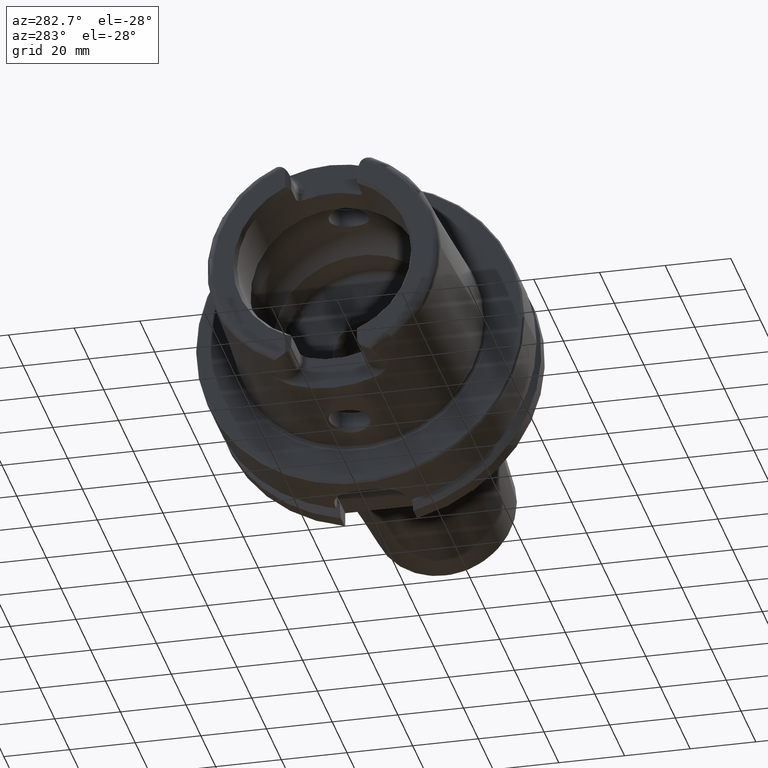
[diagram: clean part render]
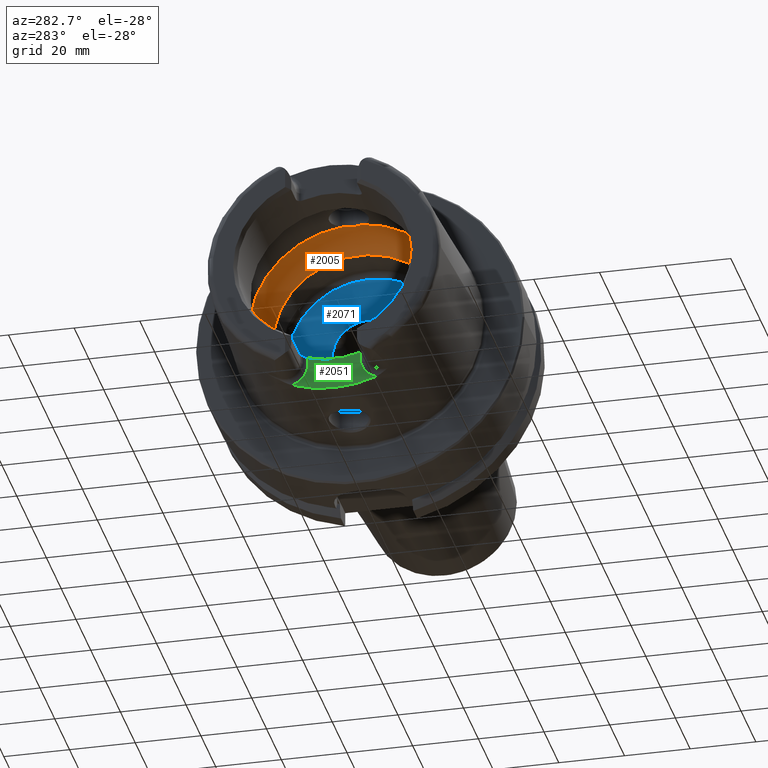
[diagram: same view with three faces highlighted in distinct colors, each labeled with its STEP entity id]
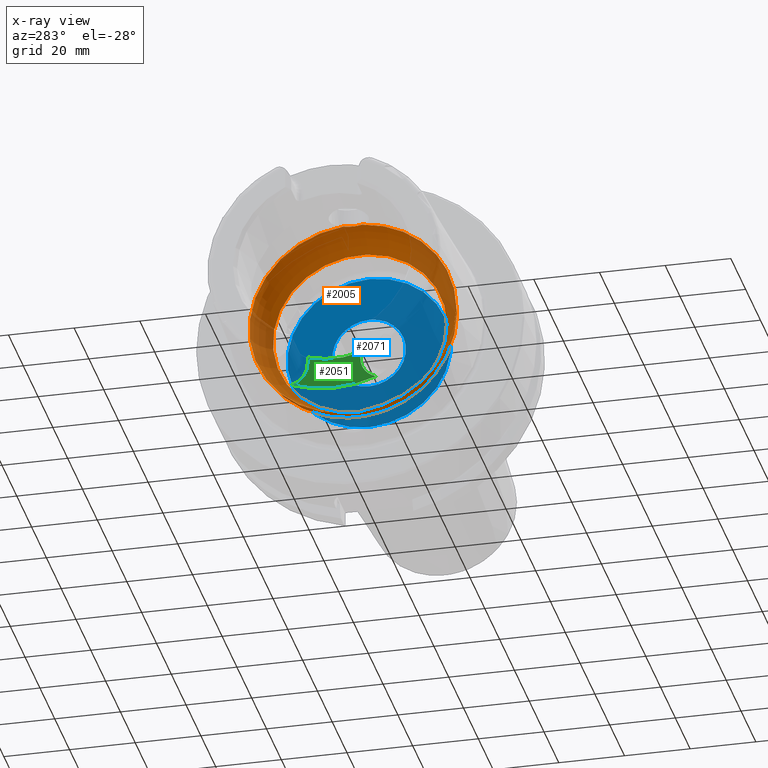
[diagram: x-ray of the same camera — body ghosted, the three highlighted faces saturated]
A machine part, auxiliary view with three faces highlighted in distinct colors.
The next image is the same camera in x-ray (body ghosted, the three faces saturated) — at least one of them is partly hidden behind the body in this view.
Their STEP definitions:

[orange] entity #2005 — the highlighted toroidal blend (fillet) surface has major radius 19.5 mm and minor (blend) radius 12 mm.
#48=B_SPLINE_CURVE_WITH_KNOTS('',3,(#3559,#3560,#3561,#3562,#3563,#3564,
#3565,#3566,#3567,#3568),.UNSPECIFIED.,.F.,.F.,(4,2,2,2,4),(-0.606113644645353,
-0.532141714710631,-0.407956541554012,-0.344441109025195,-0.303157612487306),
 .UNSPECIFIED.);
#50=B_SPLINE_CURVE_WITH_KNOTS('',3,(#3601,#3602,#3603,#3604,#3605,#3606,
#3607,#3608,#3609,#3610),.UNSPECIFIED.,.F.,.F.,(4,2,2,2,4),(-0.303157612487306,
-0.297161587155601,-0.247817233363509,-0.174446982686599,0.),
 .UNSPECIFIED.);
#53=B_SPLINE_CURVE_WITH_KNOTS('',3,(#3751,#3752,#3753,#3754,#3755,#3756,
#3757,#3758,#3759,#3760),.UNSPECIFIED.,.F.,.F.,(4,2,2,2,4),(-0.606113644645388,
-0.532141714710621,-0.407956541553997,-0.344441109025146,-0.303157612487227),
 .UNSPECIFIED.);
#55=B_SPLINE_CURVE_WITH_KNOTS('',3,(#3793,#3794,#3795,#3796,#3797,#3798,
#3799,#3800,#3801,#3802),.UNSPECIFIED.,.F.,.F.,(4,2,2,2,4),(-0.303157612487227,
-0.297161587155532,-0.247817233363497,-0.174446982686607,0.),
 .UNSPECIFIED.);
#138=TOROIDAL_SURFACE('',#2201,19.5,12.);
#243=FACE_OUTER_BOUND('',#370,.T.);
#370=EDGE_LOOP('',(#1513,#1514,#1515,#1516,#1517,#1518,#1519,#1520,#1521,
#1522,#1523));
#714=CIRCLE('',#2196,31.5);
#717=CIRCLE('',#2199,31.5);
#718=CIRCLE('',#2200,31.5);
#719=CIRCLE('',#2202,26.5);
#720=CIRCLE('',#2203,26.5);
#721=CIRCLE('',#2204,12.);
#887=VERTEX_POINT('',#3556);
#888=VERTEX_POINT('',#3558);
#889=VERTEX_POINT('',#3569);
#892=VERTEX_POINT('',#3749);
#893=VERTEX_POINT('',#3750);
#894=VERTEX_POINT('',#3761);
#895=VERTEX_POINT('',#3805);
#898=VERTEX_POINT('',#3815);
#899=VERTEX_POINT('',#3816);
#1118=EDGE_CURVE('',#888,#887,#48,.T.);
#1120=EDGE_CURVE('',#887,#889,#50,.T.);
#1124=EDGE_CURVE('',#892,#893,#53,.T.);
#1126=EDGE_CURVE('',#893,#894,#55,.T.);
#1128=EDGE_CURVE('',#895,#892,#714,.T.);
#1132=EDGE_CURVE('',#889,#895,#717,.T.);
#1133=EDGE_CURVE('',#894,#888,#718,.T.);
#1134=EDGE_CURVE('',#898,#899,#719,.T.);
#1135=EDGE_CURVE('',#899,#898,#720,.T.);
#1136=EDGE_CURVE('',#899,#887,#721,.T.);
#1513=ORIENTED_EDGE('',*,*,#1134,.F.);
#1514=ORIENTED_EDGE('',*,*,#1135,.F.);
#1515=ORIENTED_EDGE('',*,*,#1136,.T.);
#1516=ORIENTED_EDGE('',*,*,#1120,.T.);
#1517=ORIENTED_EDGE('',*,*,#1132,.T.);
#1518=ORIENTED_EDGE('',*,*,#1128,.T.);
#1519=ORIENTED_EDGE('',*,*,#1124,.T.);
#1520=ORIENTED_EDGE('',*,*,#1126,.T.);
#1521=ORIENTED_EDGE('',*,*,#1133,.T.);
#1522=ORIENTED_EDGE('',*,*,#1118,.T.);
#1523=ORIENTED_EDGE('',*,*,#1136,.F.);
#2005=ADVANCED_FACE('',(#243),#138,.F.);
#2196=AXIS2_PLACEMENT_3D('',#3806,#2581,#2582);
#2199=AXIS2_PLACEMENT_3D('',#3812,#2588,#2589);
#2200=AXIS2_PLACEMENT_3D('',#3813,#2590,#2591);
#2201=AXIS2_PLACEMENT_3D('',#3814,#2592,#2593);
#2202=AXIS2_PLACEMENT_3D('',#3817,#2594,#2595);
#2203=AXIS2_PLACEMENT_3D('',#3818,#2596,#2597);
#2204=AXIS2_PLACEMENT_3D('',#3819,#2598,#2599);
#2581=DIRECTION('center_axis',(-1.,0.,0.));
#2582=DIRECTION('ref_axis',(0.,0.,1.));
#2588=DIRECTION('center_axis',(-1.,0.,0.));
#2589=DIRECTION('ref_axis',(0.,0.,1.));
#2590=DIRECTION('center_axis',(-1.,0.,0.));
#2591=DIRECTION('ref_axis',(0.,0.,1.));
#2592=DIRECTION('center_axis',(-1.,0.,0.));
#2593=DIRECTION('ref_axis',(0.,0.,1.));
#2594=DIRECTION('center_axis',(-1.,0.,0.));
#2595=DIRECTION('ref_axis',(0.,0.,1.));
#2596=DIRECTION('center_axis',(-1.,0.,0.));
#2597=DIRECTION('ref_axis',(0.,0.,1.));
#2598=DIRECTION('center_axis',(0.,1.,-1.22464679914735E-16));
#2599=DIRECTION('ref_axis',(0.,-1.22464679914735E-16,-1.));
#3556=CARTESIAN_POINT('',(-9.,8.53116613017712E-16,-31.4767398822284));
#3558=CARTESIAN_POINT('',(-9.74679434480896,2.89893607109041,-31.3663222207471));
#3559=CARTESIAN_POINT('Ctrl Pts',(-9.74679434480898,2.89893607109041,-31.3663222207471));
#3560=CARTESIAN_POINT('Ctrl Pts',(-9.62803941549252,2.68373847757038,-31.3862111979079));
#3561=CARTESIAN_POINT('Ctrl Pts',(-9.52250794022164,2.46123932380009,-31.4027818190648));
#3562=CARTESIAN_POINT('Ctrl Pts',(-9.27707880675082,1.84905941644996,-31.4398086116956));
#3563=CARTESIAN_POINT('Ctrl Pts',(-9.16318715371328,1.45014848778478,-31.4552463037839));
#3564=CARTESIAN_POINT('Ctrl Pts',(-9.05448554629564,0.83406948853474,-31.4697090180031));
#3565=CARTESIAN_POINT('Ctrl Pts',(-9.02875508102837,0.623753972628784,-31.4730355369691));
#3566=CARTESIAN_POINT('Ctrl Pts',(-9.00473516300901,0.275210595137741,-31.4761342948647));
#3567=CARTESIAN_POINT('Ctrl Pts',(-9.,0.13762179988616,-31.4767398822284));
#3568=CARTESIAN_POINT('Ctrl Pts',(-9.,9.71445146547012E-16,-31.4767398822284));
#3569=CARTESIAN_POINT('',(-9.74679434480896,-2.89893607109041,-31.3663222207471));
#3601=CARTESIAN_POINT('Ctrl Pts',(-9.,9.83483832277069E-16,-31.4767398822284));
#3602=CARTESIAN_POINT('Ctrl Pts',(-9.,-0.0199882245331354,-31.4767398822284));
#3603=CARTESIAN_POINT('Ctrl Pts',(-9.00009988237686,-0.0399771452902417,
-31.4767270717783));
#3604=CARTESIAN_POINT('Ctrl Pts',(-9.00194380057016,-0.224464346212316,
-31.4764905359115));
#3605=CARTESIAN_POINT('Ctrl Pts',(-9.01035297969853,-0.388827878343727,
-31.4754151841588));
#3606=CARTESIAN_POINT('Ctrl Pts',(-9.0480310904853,-0.796171644009328,-31.4705320701686));
#3607=CARTESIAN_POINT('Ctrl Pts',(-9.08543037238412,-1.03809779370842,-31.4656619259797));
#3608=CARTESIAN_POINT('Ctrl Pts',(-9.26119500081336,-1.84501079512327,-31.441850680052));
#3609=CARTESIAN_POINT('Ctrl Pts',(-9.4667592962906,-2.39148034786879,-31.4132222586341));
#3610=CARTESIAN_POINT('Ctrl Pts',(-9.74679434480898,-2.89893607109041,-31.3663222207471));
#3749=CARTESIAN_POINT('',(-9.74679434480896,-2.89893607109042,31.3663222207471));
#3750=CARTESIAN_POINT('',(-8.99999999999999,7.8372767397864E-16,31.4767398822284));
#3751=CARTESIAN_POINT('Ctrl Pts',(-9.74679434480898,-2.89893607109042,31.3663222207471));
#3752=CARTESIAN_POINT('Ctrl Pts',(-9.62803941549257,-2.6837384775705,31.3862111979079));
#3753=CARTESIAN_POINT('Ctrl Pts',(-9.52250794022172,-2.46123932380032,31.4027818190648));
#3754=CARTESIAN_POINT('Ctrl Pts',(-9.27707880675083,-1.84905941645004,31.4398086116956));
#3755=CARTESIAN_POINT('Ctrl Pts',(-9.16318715371328,-1.45014848778485,31.4552463037839));
#3756=CARTESIAN_POINT('Ctrl Pts',(-9.05448554629561,-0.834069488534672,
31.4697090180031));
#3757=CARTESIAN_POINT('Ctrl Pts',(-9.02875508102836,-0.623753972628598,
31.4730355369691));
#3758=CARTESIAN_POINT('Ctrl Pts',(-9.00473516300902,-0.275210595137865,
31.4761342948647));
#3759=CARTESIAN_POINT('Ctrl Pts',(-8.99999999999999,-0.137621799886392,
31.4767398822284));
#3760=CARTESIAN_POINT('Ctrl Pts',(-8.99999999999999,9.0205620750794E-16,
31.4767398822284));
#3761=CARTESIAN_POINT('',(-9.74679434480896,2.89893607109042,31.3663222207471));
#3793=CARTESIAN_POINT('Ctrl Pts',(-8.99999999999999,8.7920239009422E-16,
31.4767398822284));
#3794=CARTESIAN_POINT('Ctrl Pts',(-8.99999999999999,0.0199882245331231,
31.4767398822284));
#3795=CARTESIAN_POINT('Ctrl Pts',(-9.00009988237684,0.0399771452902225,
31.4767270717783));
#3796=CARTESIAN_POINT('Ctrl Pts',(-9.00194380057014,0.224464346212396,31.4764905359115));
#3797=CARTESIAN_POINT('Ctrl Pts',(-9.01035297969852,0.388827878343765,31.4754151841588));
#3798=CARTESIAN_POINT('Ctrl Pts',(-9.0480310904853,0.79617164400948,31.4705320701686));
#3799=CARTESIAN_POINT('Ctrl Pts',(-9.08543037238414,1.03809779370849,31.4656619259797));
#3800=CARTESIAN_POINT('Ctrl Pts',(-9.26119500081334,1.84501079512323,31.441850680052));
#3801=CARTESIAN_POINT('Ctrl Pts',(-9.46675929629059,2.39148034786878,31.4132222586341));
#3802=CARTESIAN_POINT('Ctrl Pts',(-9.74679434480898,2.89893607109043,31.3663222207471));
#3805=CARTESIAN_POINT('',(-9.74679434480896,-31.5,3.85763741731416E-15));
#3806=CARTESIAN_POINT('Origin',(-9.74679434480896,0.,0.));
#3812=CARTESIAN_POINT('Origin',(-9.74679434480896,0.,0.));
#3813=CARTESIAN_POINT('Origin',(-9.74679434480896,0.,0.));
#3814=CARTESIAN_POINT('Origin',(-9.74679434480896,0.,0.));
#3815=CARTESIAN_POINT('',(0.,-26.5,3.24531401774049E-15));
#3816=CARTESIAN_POINT('',(0.,-3.24531401774049E-15,-26.5));
#3817=CARTESIAN_POINT('Origin',(0.,0.,0.));
#3818=CARTESIAN_POINT('Origin',(0.,0.,0.));
#3819=CARTESIAN_POINT('Origin',(-9.74679434480896,-2.38806125833734E-15,
-19.5));

[blue] entity #2071 — the highlighted planar face has unit normal (1, 0, 0).
#96=FACE_BOUND('',#440,.T.);
#132=PLANE('',#2330);
#309=FACE_OUTER_BOUND('',#439,.T.);
#439=EDGE_LOOP('',(#1873));
#440=EDGE_LOOP('',(#1874));
#775=CIRCLE('',#2319,11.188101);
#782=CIRCLE('',#2331,24.9);
#990=VERTEX_POINT('',#4434);
#996=VERTEX_POINT('',#4454);
#1287=EDGE_CURVE('',#990,#990,#775,.T.);
#1296=EDGE_CURVE('',#996,#996,#782,.T.);
#1873=ORIENTED_EDGE('',*,*,#1296,.T.);
#1874=ORIENTED_EDGE('',*,*,#1287,.T.);
#2071=ADVANCED_FACE('',(#309,#96),#132,.F.);
#2319=AXIS2_PLACEMENT_3D('',#4435,#2884,#2885);
#2330=AXIS2_PLACEMENT_3D('',#4453,#2908,#2909);
#2331=AXIS2_PLACEMENT_3D('',#4455,#2910,#2911);
#2884=DIRECTION('center_axis',(1.,0.,0.));
#2885=DIRECTION('ref_axis',(0.,0.,1.));
#2908=DIRECTION('center_axis',(1.,0.,0.));
#2909=DIRECTION('ref_axis',(0.,0.,-1.));
#2910=DIRECTION('center_axis',(-1.,0.,0.));
#2911=DIRECTION('ref_axis',(0.,0.,1.));
#4434=CARTESIAN_POINT('',(12.5,-1.37014720781873E-15,-11.188101));
#4435=CARTESIAN_POINT('Origin',(12.5,0.,0.));
#4453=CARTESIAN_POINT('Origin',(12.5,24.9,0.));
#4454=CARTESIAN_POINT('',(12.5,-3.04937052987691E-15,-24.9));
#4455=CARTESIAN_POINT('Origin',(12.5,0.,0.));

[green] entity #2051 — the highlighted planar face has unit normal (-1, 0, 0).
#124=PLANE('',#2292);
#289=FACE_OUTER_BOUND('',#417,.T.);
#417=EDGE_LOOP('',(#1774,#1775,#1776,#1777,#1778,#1779));
#549=LINE('',#4367,#656);
#552=LINE('',#4379,#659);
#656=VECTOR('',#2813,10.);
#659=VECTOR('',#2828,10.);
#710=CIRCLE('',#2189,36.25399498998);
#761=CIRCLE('',#2286,6.88);
#764=CIRCLE('',#2293,26.5);
#765=CIRCLE('',#2294,6.88);
#880=VERTEX_POINT('',#3443);
#881=VERTEX_POINT('',#3454);
#982=VERTEX_POINT('',#4351);
#984=VERTEX_POINT('',#4356);
#986=VERTEX_POINT('',#4376);
#987=VERTEX_POINT('',#4378);
#1107=EDGE_CURVE('',#880,#881,#710,.T.);
#1261=EDGE_CURVE('',#982,#880,#761,.T.);
#1263=EDGE_CURVE('',#984,#982,#549,.T.);
#1268=EDGE_CURVE('',#986,#984,#764,.T.);
#1269=EDGE_CURVE('',#987,#986,#552,.T.);
#1270=EDGE_CURVE('',#881,#987,#765,.T.);
#1774=ORIENTED_EDGE('',*,*,#1261,.F.);
#1775=ORIENTED_EDGE('',*,*,#1263,.F.);
#1776=ORIENTED_EDGE('',*,*,#1268,.F.);
#1777=ORIENTED_EDGE('',*,*,#1269,.F.);
#1778=ORIENTED_EDGE('',*,*,#1270,.F.);
#1779=ORIENTED_EDGE('',*,*,#1107,.F.);
#2051=ADVANCED_FACE('',(#289),#124,.T.);
#2189=AXIS2_PLACEMENT_3D('',#3455,#2564,#2565);
#2286=AXIS2_PLACEMENT_3D('',#4353,#2809,#2810);
#2292=AXIS2_PLACEMENT_3D('',#4375,#2824,#2825);
#2293=AXIS2_PLACEMENT_3D('',#4377,#2826,#2827);
#2294=AXIS2_PLACEMENT_3D('',#4380,#2829,#2830);
#2564=DIRECTION('center_axis',(1.,0.,0.));
#2565=DIRECTION('ref_axis',(0.,1.,0.));
#2809=DIRECTION('center_axis',(-1.,0.,0.));
#2810=DIRECTION('ref_axis',(0.,0.510937901715381,-0.8596176246394));
#2813=DIRECTION('',(0.,0.,-1.));
#2824=DIRECTION('center_axis',(-1.,0.,0.));
#2825=DIRECTION('ref_axis',(0.,0.,1.));
#2826=DIRECTION('center_axis',(-1.,0.,0.));
#2827=DIRECTION('ref_axis',(0.,1.,0.));
#2828=DIRECTION('',(0.,0.,1.));
#2829=DIRECTION('center_axis',(-1.,0.,0.));
#2830=DIRECTION('ref_axis',(0.,-0.510937901715381,-0.8596176246394));
#3443=CARTESIAN_POINT('',(-35.,-12.7918651267415,-33.9222690767105));
#3454=CARTESIAN_POINT('',(-35.,12.7918651267415,-33.9222690767105));
#3455=CARTESIAN_POINT('Origin',(-35.,0.,0.));
#4351=CARTESIAN_POINT('',(-35.,-8.01,-27.37));
#4353=CARTESIAN_POINT('Origin',(-35.,-14.89,-27.37));
#4356=CARTESIAN_POINT('',(-35.,-8.01,-25.2604414054862));
#4367=CARTESIAN_POINT('',(-35.,-8.01,-28.685));
#4375=CARTESIAN_POINT('Origin',(-35.,8.88178419700125E-15,-30.));
#4376=CARTESIAN_POINT('',(-35.,8.01,-25.2604414054862));
#4377=CARTESIAN_POINT('Origin',(-35.,0.,0.));
#4378=CARTESIAN_POINT('',(-35.,8.01,-27.37));
#4379=CARTESIAN_POINT('',(-35.,8.01,-25.));
#4380=CARTESIAN_POINT('Origin',(-35.,14.89,-27.37));